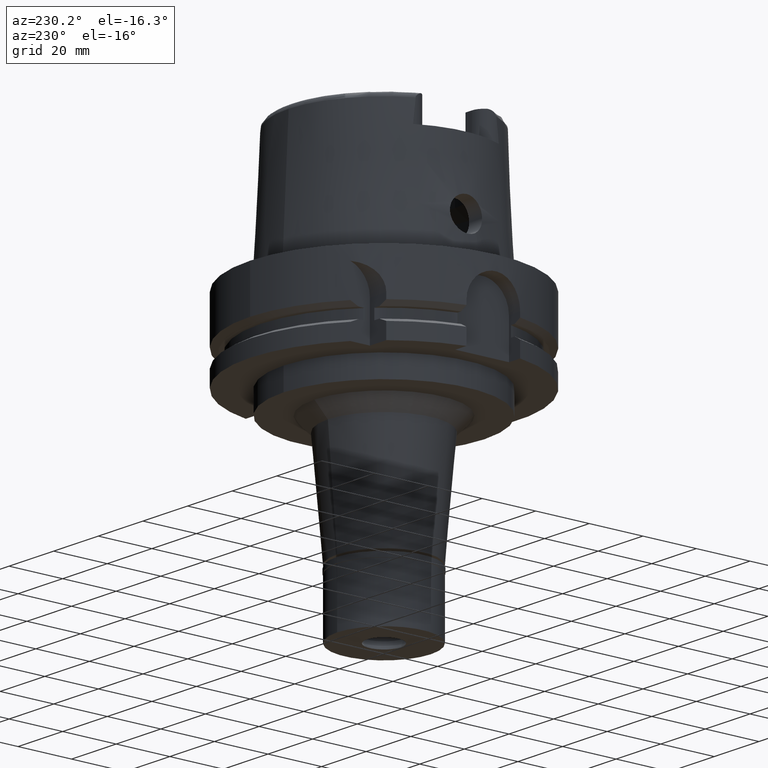
[diagram: clean part render]
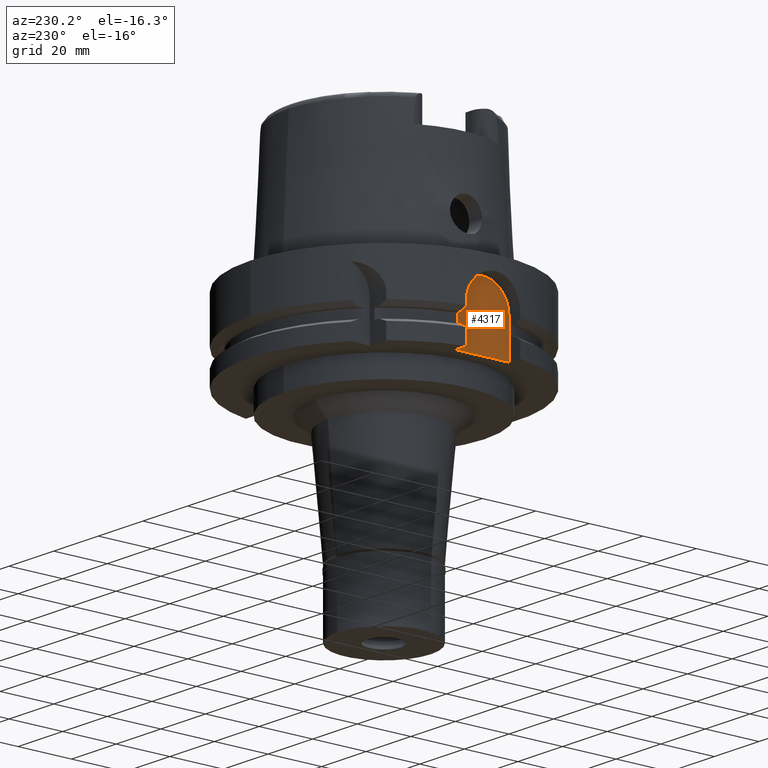
[diagram: same view with one face highlighted and labeled with its STEP entity id]
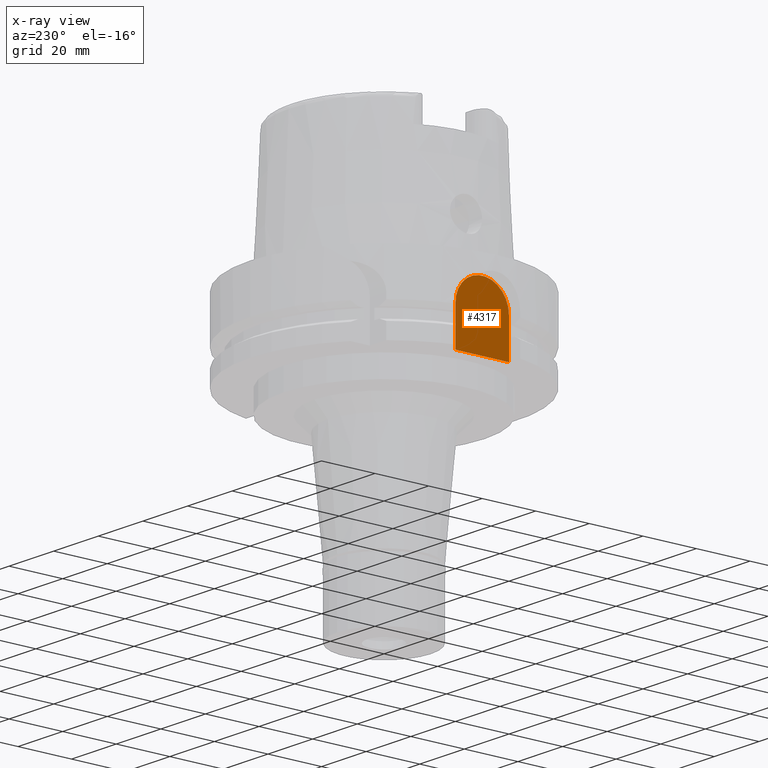
[diagram: x-ray of the same camera — body ghosted, the highlighted face saturated]
A machine part, auxiliary view. The second image highlights one B-rep face of the part: STEP entity #4317.
The next image is the same camera in x-ray: the body ghosted, the highlighted face saturated — about 0% of this face is hidden behind the body in this view.
In plain terms, the highlighted planar face has unit normal (1, 0, 0).
Its self-contained STEP definition (entity closure, byte-faithful):
#30 = CARTESIAN_POINT ( 'NONE',  ( -44.00000000000000000, -10.00000000000000000, -29.00000000000000000 ) ) ;
#74 = VECTOR ( 'NONE', #1737, 1000.000000000000000 ) ;
#117 = LINE ( 'NONE', #4838, #1353 ) ;
#140 = DIRECTION ( 'NONE',  ( 0.0000000000000000000, 1.000000000000000000, 0.0000000000000000000 ) ) ;
#349 = AXIS2_PLACEMENT_3D ( 'NONE', #544, #2250, #4044 ) ;
#354 = VERTEX_POINT ( 'NONE', #1150 ) ;
#544 = CARTESIAN_POINT ( 'NONE',  ( -44.00000000000000000, 0.0000000000000000000, 0.0000000000000000000 ) ) ;
#727 = VERTEX_POINT ( 'NONE', #5574 ) ;
#944 = EDGE_CURVE ( 'NONE', #727, #1580, #117, .T. ) ;
#966 = PLANE ( 'NONE',  #349 ) ;
#1012 = CARTESIAN_POINT ( 'NONE',  ( -44.00000000000000000, 10.00000000000000000, -15.00000000000000000 ) ) ;
#1150 = CARTESIAN_POINT ( 'NONE',  ( -44.00000000000000000, 10.00000000000000000, -15.00000000000000000 ) ) ;
#1307 = EDGE_CURVE ( 'NONE', #354, #1510, #4059, .T. ) ;
#1353 = VECTOR ( 'NONE', #140, 1000.000000000000000 ) ;
#1510 = VERTEX_POINT ( 'NONE', #2488 ) ;
#1580 = VERTEX_POINT ( 'NONE', #5238 ) ;
#1737 = DIRECTION ( 'NONE',  ( 0.0000000000000000000, 0.0000000000000000000, 1.000000000000000000 ) ) ;
#1760 = DIRECTION ( 'NONE',  ( 0.0000000000000000000, 0.0000000000000000000, 1.000000000000000000 ) ) ;
#2209 = CARTESIAN_POINT ( 'NONE',  ( -44.00000000000000000, 0.0000000000000000000, -15.00000000000000000 ) ) ;
#2250 = DIRECTION ( 'NONE',  ( 1.000000000000000000, 0.0000000000000000000, 0.0000000000000000000 ) ) ;
#2486 = VECTOR ( 'NONE', #4645, 1000.000000000000000 ) ;
#2488 = CARTESIAN_POINT ( 'NONE',  ( -44.00000000000000000, -10.00000000000000000, -15.00000000000000000 ) ) ;
#2490 = ORIENTED_EDGE ( 'NONE', *, *, #1307, .F. ) ;
#2652 = EDGE_LOOP ( 'NONE', ( #4165, #2490, #4903, #4865 ) ) ;
#3079 = DIRECTION ( 'NONE',  ( 1.000000000000000000, 0.0000000000000000000, 0.0000000000000000000 ) ) ;
#3129 = FACE_OUTER_BOUND ( 'NONE', #2652, .T. ) ;
#3144 = AXIS2_PLACEMENT_3D ( 'NONE', #2209, #3079, #1760 ) ;
#3652 = EDGE_CURVE ( 'NONE', #354, #1580, #5008, .T. ) ;
#3753 = EDGE_CURVE ( 'NONE', #727, #1510, #5194, .T. ) ;
#4044 = DIRECTION ( 'NONE',  ( 0.0000000000000000000, 1.000000000000000000, 0.0000000000000000000 ) ) ;
#4059 = CIRCLE ( 'NONE', #3144, 10.00000000000000000 ) ;
#4165 = ORIENTED_EDGE ( 'NONE', *, *, #3753, .T. ) ;
#4317 = ADVANCED_FACE ( 'NONE', ( #3129 ), #966, .F. ) ;
#4645 = DIRECTION ( 'NONE',  ( 0.0000000000000000000, 0.0000000000000000000, -1.000000000000000000 ) ) ;
#4838 = CARTESIAN_POINT ( 'NONE',  ( -44.00000000000000000, -10.00000000000000000, -29.00000000000000000 ) ) ;
#4865 = ORIENTED_EDGE ( 'NONE', *, *, #944, .F. ) ;
#4903 = ORIENTED_EDGE ( 'NONE', *, *, #3652, .T. ) ;
#5008 = LINE ( 'NONE', #1012, #2486 ) ;
#5194 = LINE ( 'NONE', #30, #74 ) ;
#5238 = CARTESIAN_POINT ( 'NONE',  ( -44.00000000000000000, 10.00000000000000000, -29.00000000000000000 ) ) ;
#5574 = CARTESIAN_POINT ( 'NONE',  ( -44.00000000000000000, -10.00000000000000000, -29.00000000000000000 ) ) ;